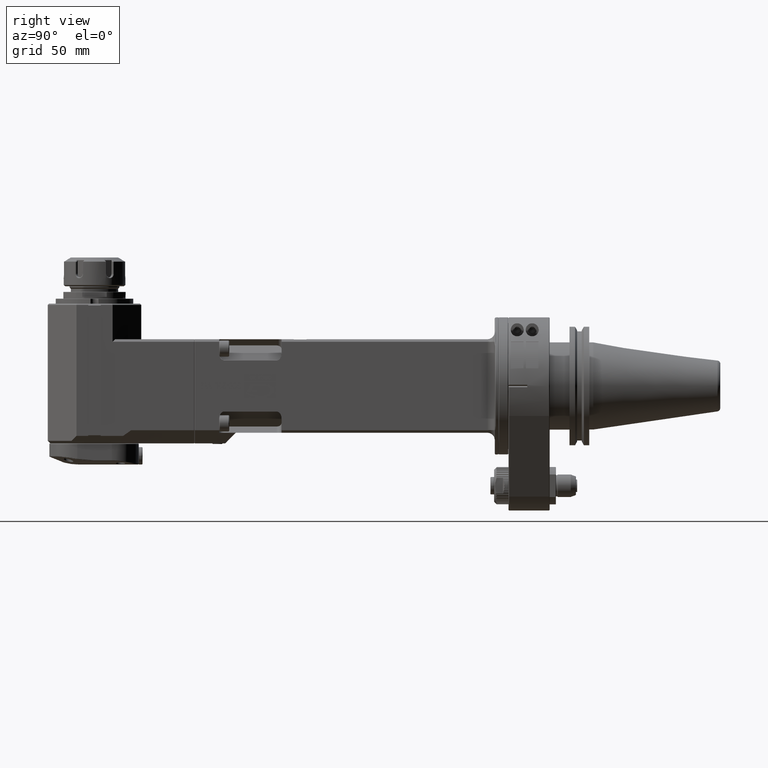
[diagram: clean part render]
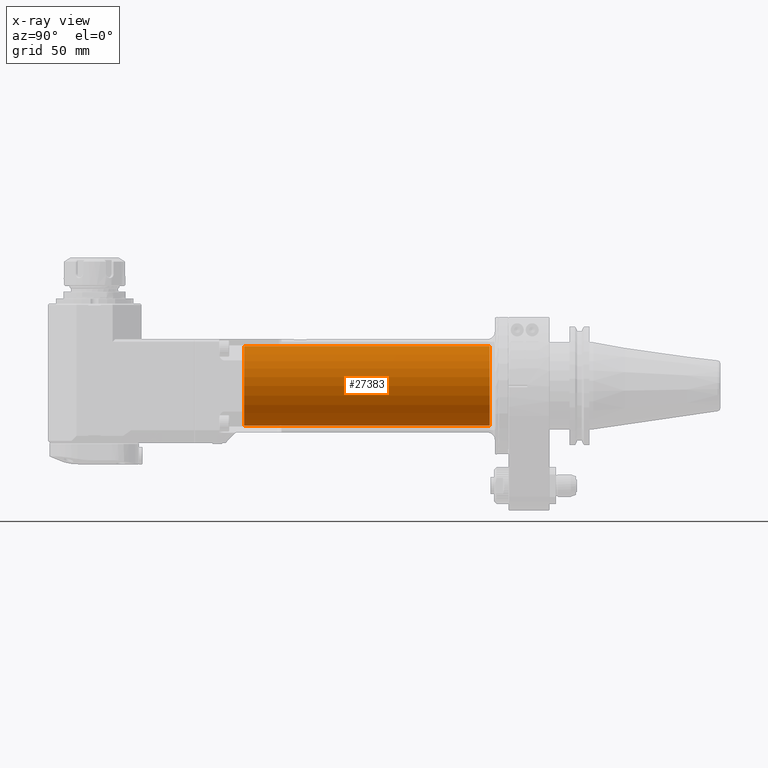
[diagram: x-ray — body ghosted, one internal face saturated and labeled with its STEP entity id]
A machine part, right view, then the same camera in x-ray: the body is ghosted and one INTERNAL B-rep face — a face not visible from any outside direction — is saturated and labeled: STEP entity #27383.
In plain terms, the highlighted cylindrical surface (bore or boss wall) has radius 32 mm, axis along (0, -1, 0).
Its self-contained STEP definition (entity closure, byte-faithful):
#2238=CIRCLE('',#29605,32.);
#2239=CIRCLE('',#29606,32.);
#2240=CIRCLE('',#29608,32.);
#2241=CIRCLE('',#29609,32.);
#2936=CYLINDRICAL_SURFACE('',#29607,32.);
#3614=FACE_OUTER_BOUND('',#5302,.T.);
#5302=EDGE_LOOP('',(#20483,#20484,#20485,#20486,#20487,#20488));
#7245=LINE('',#42897,#9442);
#9442=VECTOR('',#34059,32.);
#11798=VERTEX_POINT('',#42887);
#11799=VERTEX_POINT('',#42889);
#11800=VERTEX_POINT('',#42893);
#11801=VERTEX_POINT('',#42894);
#14987=EDGE_CURVE('',#11798,#11799,#2238,.T.);
#14988=EDGE_CURVE('',#11799,#11798,#2239,.T.);
#14989=EDGE_CURVE('',#11800,#11801,#2240,.T.);
#14990=EDGE_CURVE('',#11801,#11800,#2241,.T.);
#14991=EDGE_CURVE('',#11800,#11799,#7245,.T.);
#20483=ORIENTED_EDGE('',*,*,#14989,.T.);
#20484=ORIENTED_EDGE('',*,*,#14990,.T.);
#20485=ORIENTED_EDGE('',*,*,#14991,.T.);
#20486=ORIENTED_EDGE('',*,*,#14987,.F.);
#20487=ORIENTED_EDGE('',*,*,#14988,.F.);
#20488=ORIENTED_EDGE('',*,*,#14991,.F.);
#27383=ADVANCED_FACE('',(#3614),#2936,.F.);
#29605=AXIS2_PLACEMENT_3D('',#42890,#34049,#34050);
#29606=AXIS2_PLACEMENT_3D('',#42891,#34051,#34052);
#29607=AXIS2_PLACEMENT_3D('',#42892,#34053,#34054);
#29608=AXIS2_PLACEMENT_3D('',#42895,#34055,#34056);
#29609=AXIS2_PLACEMENT_3D('',#42896,#34057,#34058);
#34049=DIRECTION('center_axis',(0.,1.,0.));
#34050=DIRECTION('ref_axis',(-1.,0.,0.));
#34051=DIRECTION('center_axis',(0.,1.,0.));
#34052=DIRECTION('ref_axis',(-1.,0.,0.));
#34053=DIRECTION('center_axis',(0.,-1.,0.));
#34054=DIRECTION('ref_axis',(-1.,0.,0.));
#34055=DIRECTION('center_axis',(0.,1.,0.));
#34056=DIRECTION('ref_axis',(1.,0.,0.));
#34057=DIRECTION('center_axis',(0.,1.,0.));
#34058=DIRECTION('ref_axis',(1.,0.,0.));
#34059=DIRECTION('',(0.,-1.,0.));
#42887=CARTESIAN_POINT('',(3.91886975727214E-15,-212.000000000005,32.000000000005));
#42889=CARTESIAN_POINT('',(32.,-212.,0.));
#42890=CARTESIAN_POINT('Origin',(0.,-212.,0.));
#42891=CARTESIAN_POINT('Origin',(0.,-212.,0.));
#42892=CARTESIAN_POINT('Origin',(3.561886210373E-14,38.85,0.));
#42893=CARTESIAN_POINT('',(32.,-15.,0.));
#42894=CARTESIAN_POINT('',(1.35397848988385E-14,-15.0000000000001,32.0000000000002));
#42895=CARTESIAN_POINT('Origin',(2.902413909032E-14,-15.,0.));
#42896=CARTESIAN_POINT('Origin',(2.902413909032E-14,-15.,0.));
#42897=CARTESIAN_POINT('',(32.,38.85,3.91886975727153E-15));